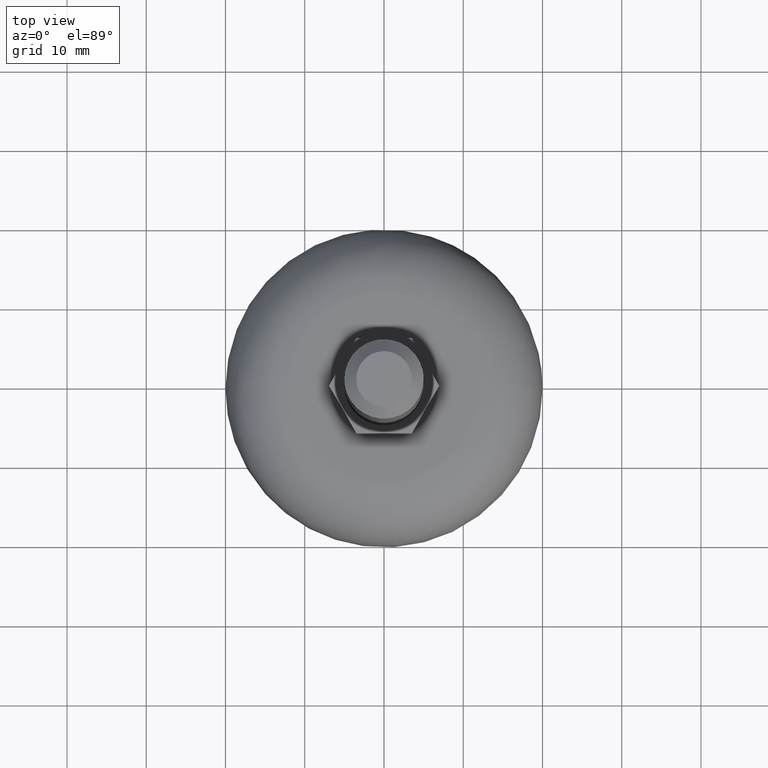
[diagram: clean part render]
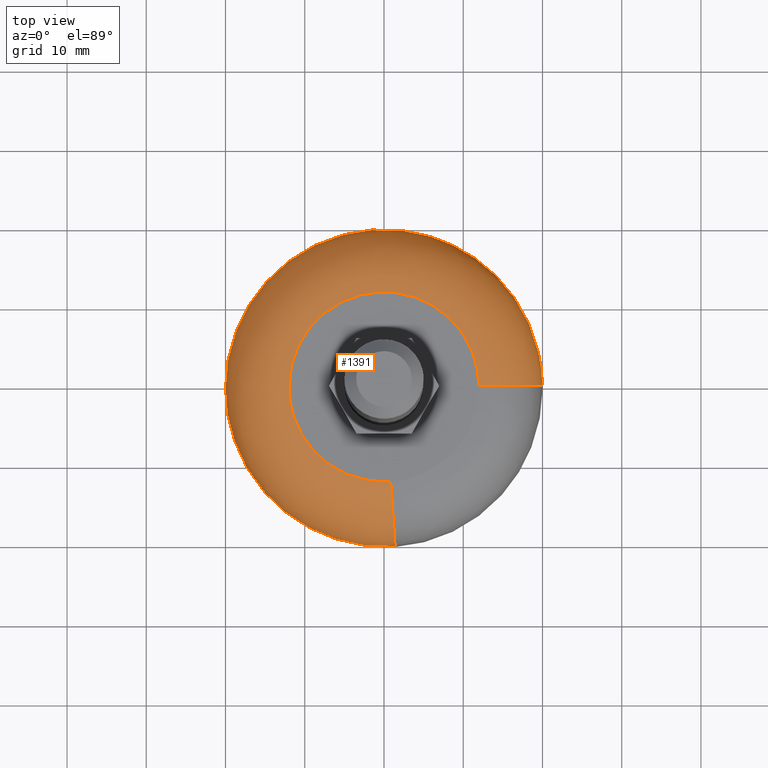
[diagram: same view with one face highlighted and labeled with its STEP entity id]
A machine part, top view. The second image highlights one B-rep face of the part: STEP entity #1391.
In plain terms, the highlighted face is a freeform B-spline surface patch.
Its self-contained STEP definition (entity closure, byte-faithful):
#726=CARTESIAN_POINT('',(11.416802232490300,16.421224886840221,7.000000000003430));
#727=VERTEX_POINT('',#726);
#728=CARTESIAN_POINT('',(19.998420884076250,0.251320797672124,7.000000000018707));
#729=VERTEX_POINT('',#728);
#730=CARTESIAN_POINT('',(11.416802232490303,16.421224886840221,7.000000000003430));
#731=CARTESIAN_POINT('',(19.869062159518599,10.544819157701268,7.000000000008956));
#732=CARTESIAN_POINT('',(19.998420884076257,0.251320797672123,7.000000000018707));
#740=(BOUNDED_CURVE()B_SPLINE_CURVE(2,(#730,#731,#732),.UNSPECIFIED.,.F.,.U.)B_SPLINE_CURVE_WITH_KNOTS((3,3),(0.348090586550333,0.497784295921639),.UNSPECIFIED.)CURVE()GEOMETRIC_REPRESENTATION_ITEM()RATIONAL_B_SPLINE_CURVE((0.860340232894509,0.822585876007829,0.994854295643807))REPRESENTATION_ITEM(''));
#741=EDGE_CURVE('',#727,#729,#740,.T.);
#758=CARTESIAN_POINT('',(1.394665031530033,-19.951313476807169,7.000000000018318));
#759=VERTEX_POINT('',#758);
#773=CARTESIAN_POINT('',(-20.0,0.0,7.0));
#774=VERTEX_POINT('',#773);
#775=CARTESIAN_POINT('',(1.394665031530033,-19.951313476807162,7.000000000018318));
#776=CARTESIAN_POINT('',(0.698182317515508,-20.000000000000004,6.999999999999999));
#777=CARTESIAN_POINT('',(0.0,-20.0,7.0));
#778=CARTESIAN_POINT('',(-19.999999999999996,-19.999999999999996,6.999999999999999));
#779=CARTESIAN_POINT('',(-20.0,0.0,7.0));
#787=(BOUNDED_CURVE()B_SPLINE_CURVE(2,(#775,#776,#777,#778,#779),.UNSPECIFIED.,.F.,.U.)B_SPLINE_CURVE_WITH_KNOTS((3,2,3),(0.737833686534769,0.750000000000000,1.0),.UNSPECIFIED.)CURVE()GEOMETRIC_REPRESENTATION_ITEM()RATIONAL_B_SPLINE_CURVE((0.972879876386294,0.985746277152300,1.0,0.707106781186548,1.0))REPRESENTATION_ITEM(''));
#788=EDGE_CURVE('',#759,#774,#787,.T.);
#790=CARTESIAN_POINT('',(-1.569161674606889,19.938348267560489,7.000000000000140));
#791=VERTEX_POINT('',#790);
#792=CARTESIAN_POINT('',(-20.0,0.0,7.0));
#793=CARTESIAN_POINT('',(-19.999999999999993,18.487828658675415,6.999999999999999));
#794=CARTESIAN_POINT('',(-1.569161674606889,19.938348267560492,7.000000000000140));
#802=(BOUNDED_CURVE()B_SPLINE_CURVE(2,(#792,#793,#794),.UNSPECIFIED.,.F.,.U.)B_SPLINE_CURVE_WITH_KNOTS((3,3),(0.0,0.236331474650379),.UNSPECIFIED.)CURVE()GEOMETRIC_REPRESENTATION_ITEM()RATIONAL_B_SPLINE_CURVE((1.0,0.723120454730882,0.969723719333581))REPRESENTATION_ITEM(''));
#803=EDGE_CURVE('',#774,#791,#802,.T.);
#881=CARTESIAN_POINT('',(-1.569161674606889,19.938348267560492,7.000000000000140));
#882=CARTESIAN_POINT('',(-0.785791973215792,20.000000000000004,7.000000000000001));
#883=CARTESIAN_POINT('',(0.0,20.0,7.0));
#884=CARTESIAN_POINT('',(6.269312615356380,20.000000000000007,7.000000000000003));
#885=CARTESIAN_POINT('',(11.416802232490303,16.421224886840221,7.000000000003430));
#893=(BOUNDED_CURVE()B_SPLINE_CURVE(2,(#881,#882,#883,#884,#885),.UNSPECIFIED.,.F.,.U.)B_SPLINE_CURVE_WITH_KNOTS((3,2,3),(0.236331474650379,0.250000000000000,0.348090586550333),.UNSPECIFIED.)CURVE()GEOMETRIC_REPRESENTATION_ITEM()RATIONAL_B_SPLINE_CURVE((0.969723719333581,0.983986326455665,1.0,0.885079729479894,0.860340232894509))REPRESENTATION_ITEM(''));
#894=EDGE_CURVE('',#791,#727,#893,.T.);
#1288=CARTESIAN_POINT('',(0.798006005607798,-11.415845558597301,14.980634930461672));
#1289=CARTESIAN_POINT('',(0.471289725574614,-11.438684125592454,14.980634930461676));
#1290=CARTESIAN_POINT('',(0.143802031084160,-11.442799673969123,14.980634930461679));
#1291=CARTESIAN_POINT('',(-11.298997642884959,-11.586601705053281,14.980634930461672));
#1292=CARTESIAN_POINT('',(-11.442799673969123,-0.143802031084161,14.980634930461679));
#1293=CARTESIAN_POINT('',(-11.586601705053281,11.298997642884959,14.980634930461672));
#1294=CARTESIAN_POINT('',(-0.143802031084161,11.442799673969123,14.980634930461679));
#1295=CARTESIAN_POINT('',(11.298997642884959,11.586601705053283,14.980634930461672));
#1296=CARTESIAN_POINT('',(11.442799673969123,0.143802031084162,14.980634930461679));
#1297=CARTESIAN_POINT('',(1.437919242012079,-20.570100822791076,15.620297032631649));
#1298=CARTESIAN_POINT('',(0.849212362067602,-20.611253414014126,15.620297032631647));
#1299=CARTESIAN_POINT('',(0.259115477932829,-20.618669180512963,15.620297032631653));
#1300=CARTESIAN_POINT('',(-20.359553702580115,-20.877784658445773,15.620297032631651));
#1301=CARTESIAN_POINT('',(-20.618669180512963,-0.259115477932831,15.620297032631653));
#1302=CARTESIAN_POINT('',(-20.877784658445773,20.359553702580115,15.620297032631651));
#1303=CARTESIAN_POINT('',(-0.259115477932832,20.618669180512963,15.620297032631653));
#1304=CARTESIAN_POINT('',(20.359553702580115,20.877784658445773,15.620297032631651));
#1305=CARTESIAN_POINT('',(20.618669180512963,0.259115477932833,15.620297032631653));
#1306=CARTESIAN_POINT('',(1.393313541128473,-19.931995609619911,6.443702998597570));
#1307=CARTESIAN_POINT('',(0.822868940613666,-19.971871606079461,6.443702998597569));
#1308=CARTESIAN_POINT('',(0.251077455236359,-19.979057328044071,6.443702998597570));
#1309=CARTESIAN_POINT('',(-19.727979872807730,-20.230134783280434,6.443702998597571));
#1310=CARTESIAN_POINT('',(-19.979057328044071,-0.251077455236360,6.443702998597570));
#1311=CARTESIAN_POINT('',(-20.230134783280434,19.727979872807730,6.443702998597571));
#1312=CARTESIAN_POINT('',(-0.251077455236361,19.979057328044071,6.443702998597570));
#1313=CARTESIAN_POINT('',(19.727979872807712,20.230134783280434,6.443702998597571));
#1314=CARTESIAN_POINT('',(19.979057328044071,0.251077455236362,6.443702998597570));
#1322=(BOUNDED_SURFACE()B_SPLINE_SURFACE(2,2,((#1288,#1297,#1306),(#1289,#1298,#1307),(#1290,#1299,#1308),(#1291,#1300,#1309),(#1292,#1301,#1310),(#1293,#1302,#1311),(#1294,#1303,#1312),(#1295,#1304,#1313),(#1296,#1305,#1314)),.UNSPECIFIED.,.F.,.F.,.U.)B_SPLINE_SURFACE_WITH_KNOTS((3,2,2,2,3),(3,3),(0.0,1.324198731802228,34.429198598246053,67.534198464689865,100.639198331133700),(0.0,14.578991335193271),.UNSPECIFIED.)GEOMETRIC_REPRESENTATION_ITEM()RATIONAL_B_SPLINE_SURFACE(((0.895729732449210,0.587800221482116,0.895729743804760),(0.905606490046838,0.594281596491894,0.905606501527600),(0.916342095240933,0.601326568744382,0.916342106857795),(0.647951709431553,0.425202094466791,0.647951717645915),(0.916342095240933,0.601326568744382,0.916342106857795),(0.647951709431553,0.425202094466791,0.647951717645915),(0.916342095240933,0.601326568744382,0.916342106857795),(0.647951709431553,0.425202094466791,0.647951717645915),(0.916342095240933,0.601326568744382,0.916342106857795)))REPRESENTATION_ITEM('')SURFACE());
#1323=CARTESIAN_POINT('',(0.836799049755325,-11.970788112341200,15.0));
#1324=VERTEX_POINT('',#1323);
#1325=CARTESIAN_POINT('',(-12.0,0.0,15.0));
#1326=VERTEX_POINT('',#1325);
#1327=CARTESIAN_POINT('',(0.836799049755325,-11.970788112341204,15.0));
#1328=CARTESIAN_POINT('',(0.418909419475821,-11.999999999999996,15.000000000000007));
#1329=CARTESIAN_POINT('',(0.0,-12.0,15.0));
#1330=CARTESIAN_POINT('',(-12.0,-12.0,14.999999999999995));
#1331=CARTESIAN_POINT('',(-12.0,0.0,15.0));
#1339=(BOUNDED_CURVE()B_SPLINE_CURVE(2,(#1327,#1328,#1329,#1330,#1331),.UNSPECIFIED.,.F.,.U.)B_SPLINE_CURVE_WITH_KNOTS((3,2,3),(0.737833685705491,0.750000000000000,1.0),.UNSPECIFIED.)CURVE()GEOMETRIC_REPRESENTATION_ITEM()RATIONAL_B_SPLINE_CURVE((0.972879874632299,0.985746276180740,1.0,0.707106781186548,1.0))REPRESENTATION_ITEM(''));
#1340=EDGE_CURVE('',#1324,#1326,#1339,.T.);
#1341=ORIENTED_EDGE('',*,*,#1340,.T.);
#1342=CARTESIAN_POINT('',(11.999052531572310,0.150792478983244,15.0));
#1343=VERTEX_POINT('',#1342);
#1344=CARTESIAN_POINT('',(-12.0,0.0,15.0));
#1345=CARTESIAN_POINT('',(-12.0,12.0,14.999999999999995));
#1346=CARTESIAN_POINT('',(0.0,12.0,15.0));
#1347=CARTESIAN_POINT('',(11.850143158159254,11.999999999999998,15.000000000000002));
#1348=CARTESIAN_POINT('',(11.999052531572307,0.150792478983244,14.999999999999996));
#1356=(BOUNDED_CURVE()B_SPLINE_CURVE(2,(#1344,#1345,#1346,#1347,#1348),.UNSPECIFIED.,.F.,.U.)B_SPLINE_CURVE_WITH_KNOTS((3,2,3),(0.0,0.250000000000000,0.497784295910917),.UNSPECIFIED.)CURVE()GEOMETRIC_REPRESENTATION_ITEM()RATIONAL_B_SPLINE_CURVE((1.0,0.707106781186548,1.0,0.709702639996906,0.994854295619130))REPRESENTATION_ITEM(''));
#1357=EDGE_CURVE('',#1326,#1343,#1356,.T.);
#1358=ORIENTED_EDGE('',*,*,#1357,.T.);
#1359=CARTESIAN_POINT('',(11.999052531572305,0.150792478983244,14.999999999999993));
#1360=CARTESIAN_POINT('',(19.998420884038907,0.251320797666568,14.999999997737520));
#1361=CARTESIAN_POINT('',(19.998420884076257,0.251320797672124,7.000000000018706));
#1369=(BOUNDED_CURVE()B_SPLINE_CURVE(2,(#1359,#1360,#1361),.UNSPECIFIED.,.F.,.U.)B_SPLINE_CURVE_WITH_KNOTS((3,3),(-1.734750791364536,-0.265249208346459),.UNSPECIFIED.)CURVE()GEOMETRIC_REPRESENTATION_ITEM()RATIONAL_B_SPLINE_CURVE((0.889029723472298,0.628638946270237,0.889029723574719))REPRESENTATION_ITEM(''));
#1370=EDGE_CURVE('',#1343,#729,#1369,.T.);
#1371=ORIENTED_EDGE('',*,*,#1370,.T.);
#1372=ORIENTED_EDGE('',*,*,#741,.F.);
#1373=ORIENTED_EDGE('',*,*,#894,.F.);
#1374=ORIENTED_EDGE('',*,*,#803,.F.);
#1375=ORIENTED_EDGE('',*,*,#788,.F.);
#1376=CARTESIAN_POINT('',(0.836799049755325,-11.970788112341204,14.999999999999996));
#1377=CARTESIAN_POINT('',(1.394665031506272,-19.951313476772086,14.999999943313261));
#1378=CARTESIAN_POINT('',(1.394665031530033,-19.951313476807169,7.000000000018318));
#1386=(BOUNDED_CURVE()B_SPLINE_CURVE(2,(#1376,#1377,#1378),.UNSPECIFIED.,.F.,.U.)B_SPLINE_CURVE_WITH_KNOTS((3,3),(-1.734750784295542,-0.265249208346358),.UNSPECIFIED.)CURVE()GEOMETRIC_REPRESENTATION_ITEM()RATIONAL_B_SPLINE_CURVE((0.869031709324607,0.614498217809301,0.869031711873611))REPRESENTATION_ITEM(''));
#1387=EDGE_CURVE('',#1324,#759,#1386,.T.);
#1388=ORIENTED_EDGE('',*,*,#1387,.F.);
#1389=EDGE_LOOP('',(#1341,#1358,#1371,#1372,#1373,#1374,#1375,#1388));
#1390=FACE_OUTER_BOUND('',#1389,.T.);
#1391=ADVANCED_FACE('',(#1390),#1322,.T.);